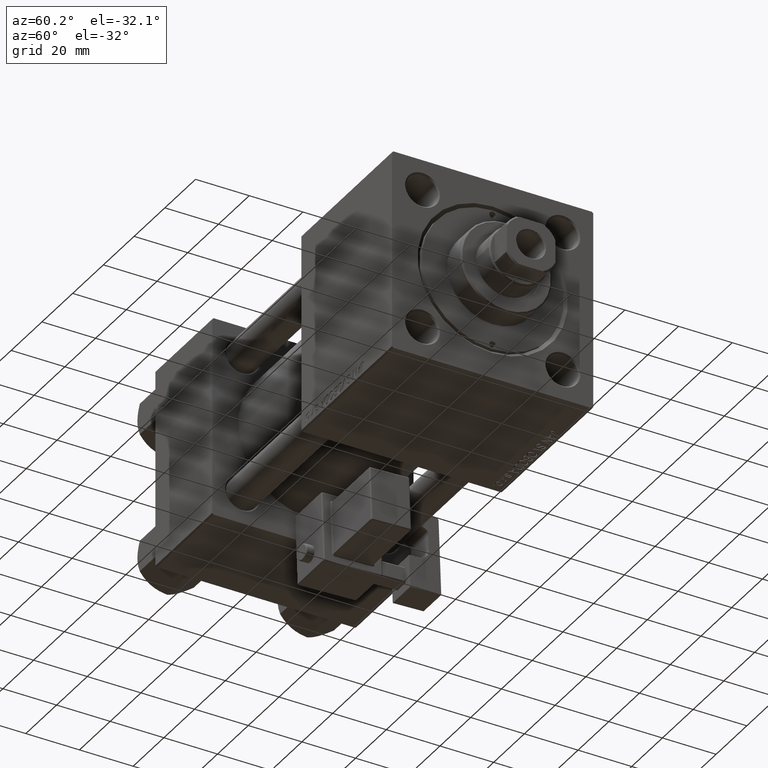
[diagram: clean part render]
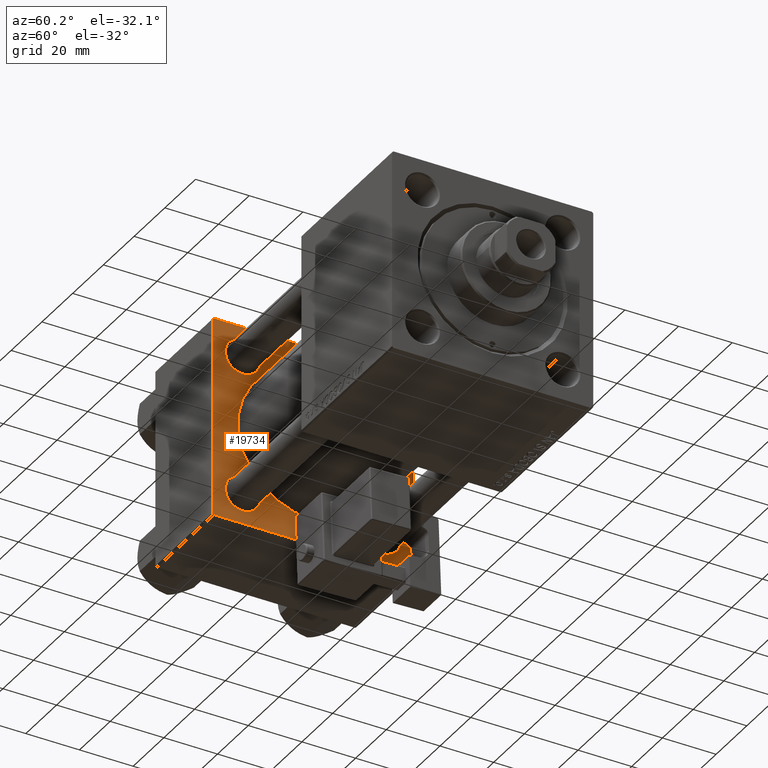
[diagram: same view with one face highlighted and labeled with its STEP entity id]
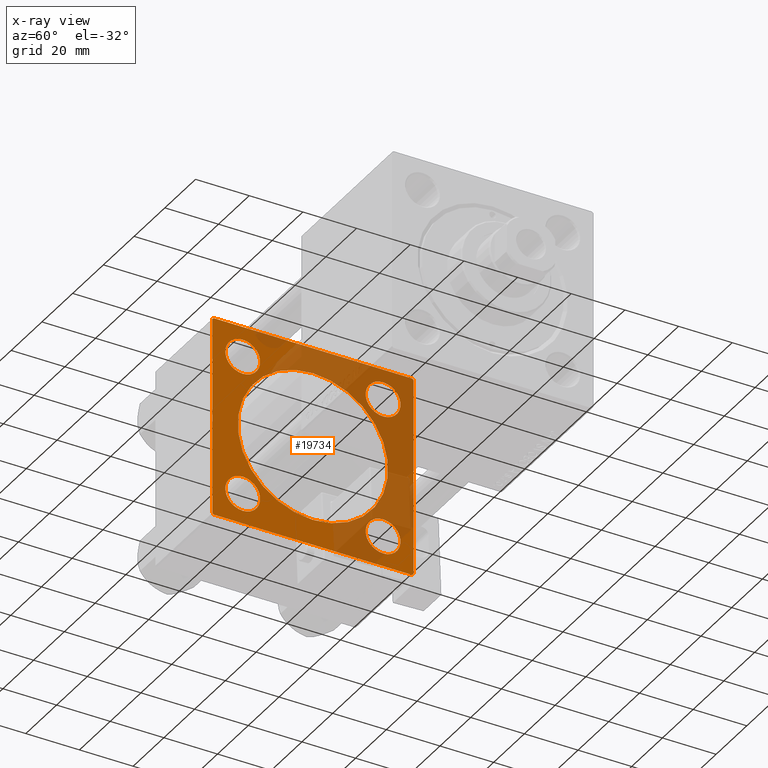
[diagram: x-ray of the same camera — body ghosted, the highlighted face saturated]
A machine part, auxiliary view. The second image highlights one B-rep face of the part: STEP entity #19734.
The next image is the same camera in x-ray: the body ghosted, the highlighted face saturated — about 48% of this face is hidden behind the body in this view.
In plain terms, the highlighted planar face has unit normal (-1, 0, 0).
Its self-contained STEP definition (entity closure, byte-faithful):
#180 = ORIENTED_EDGE ( 'NONE', *, *, #30512, .T. ) ;
#266 = CARTESIAN_POINT ( 'NONE',  ( 37.00000000000000000, 36.99999999999997868, -37.50000000000000000 ) ) ;
#515 = CARTESIAN_POINT ( 'NONE',  ( 37.00000000000000000, -26.14999999999999147, 32.65000000000001990 ) ) ;
#838 = LINE ( 'NONE', #41777, #36982 ) ;
#1379 = VERTEX_POINT ( 'NONE', #29436 ) ;
#2165 = VECTOR ( 'NONE', #45801, 1000.000000000000000 ) ;
#2439 = DIRECTION ( 'NONE',  ( -1.000000000000000000, 0.000000000000000000, -0.000000000000000000 ) ) ;
#2680 = VERTEX_POINT ( 'NONE', #43972 ) ;
#3248 = CARTESIAN_POINT ( 'NONE',  ( 37.00000000000000000, -26.14999999999999147, -19.65000000000000924 ) ) ;
#4253 = CARTESIAN_POINT ( 'NONE',  ( 37.00000000000000000, -2.602085213965210642E-15, 0.000000000000000000 ) ) ;
#5064 = EDGE_CURVE ( 'NONE', #6450, #24237, #6155, .T. ) ;
#5147 = VERTEX_POINT ( 'NONE', #20826 ) ;
#5470 = EDGE_CURVE ( 'NONE', #51007, #41295, #12247, .T. ) ;
#5558 = ORIENTED_EDGE ( 'NONE', *, *, #29639, .T. ) ;
#6155 = CIRCLE ( 'NONE', #13781, 6.500000000000030198 ) ;
#6450 = VERTEX_POINT ( 'NONE', #46031 ) ;
#6490 = EDGE_CURVE ( 'NONE', #31333, #5147, #18911, .T. ) ;
#7005 = DIRECTION ( 'NONE',  ( 0.000000000000000000, 0.000000000000000000, 1.000000000000000000 ) ) ;
#7140 = CARTESIAN_POINT ( 'NONE',  ( 37.00000000000000000, 26.14999999999999858, 19.64999999999997016 ) ) ;
#7176 = DIRECTION ( 'NONE',  ( 1.000000000000000000, -0.000000000000000000, 0.000000000000000000 ) ) ;
#7617 = FACE_OUTER_BOUND ( 'NONE', #12318, .T. ) ;
#7843 = VECTOR ( 'NONE', #8771, 1000.000000000000000 ) ;
#8028 = VERTEX_POINT ( 'NONE', #25993 ) ;
#8622 = CARTESIAN_POINT ( 'NONE',  ( 37.00000000000000000, -37.00000000000002132, -37.50000000000000711 ) ) ;
#8771 = DIRECTION ( 'NONE',  ( 0.000000000000000000, 0.000000000000000000, -1.000000000000000000 ) ) ;
#9038 = DIRECTION ( 'NONE',  ( -1.000000000000000000, 0.000000000000000000, -0.000000000000000000 ) ) ;
#9269 = EDGE_LOOP ( 'NONE', ( #38398, #46520 ) ) ;
#10753 = DIRECTION ( 'NONE',  ( 0.000000000000000000, 0.000000000000000000, 1.000000000000000000 ) ) ;
#11742 = ORIENTED_EDGE ( 'NONE', *, *, #16235, .F. ) ;
#12247 = LINE ( 'NONE', #28459, #7843 ) ;
#12318 = EDGE_LOOP ( 'NONE', ( #11742, #31190, #39809, #21229, #33903, #48790, #21250, #30911 ) ) ;
#13159 = DIRECTION ( 'NONE',  ( -1.000000000000000000, 0.000000000000000000, -0.000000000000000000 ) ) ;
#13210 = CARTESIAN_POINT ( 'NONE',  ( 37.00000000000000000, 37.49999999999999289, 37.50000000000000000 ) ) ;
#13676 = CARTESIAN_POINT ( 'NONE',  ( 37.00000000000000000, -26.14999999999999147, 26.15000000000000924 ) ) ;
#13781 = AXIS2_PLACEMENT_3D ( 'NONE', #39710, #35453, #7005 ) ;
#14136 = DIRECTION ( 'NONE',  ( 0.000000000000000000, 0.000000000000000000, 1.000000000000000000 ) ) ;
#14214 = CARTESIAN_POINT ( 'NONE',  ( 37.00000000000000000, 26.14999999999999858, 26.15000000000000213 ) ) ;
#14240 = VERTEX_POINT ( 'NONE', #20589 ) ;
#14386 = EDGE_CURVE ( 'NONE', #1379, #8028, #32660, .T. ) ;
#15212 = CIRCLE ( 'NONE', #31349, 6.500000000000030198 ) ;
#15308 = CARTESIAN_POINT ( 'NONE',  ( 37.00000000000000000, -37.00000000000000711, 37.49999999999999289 ) ) ;
#15371 = AXIS2_PLACEMENT_3D ( 'NONE', #13676, #13159, #37364 ) ;
#15403 = CIRCLE ( 'NONE', #30668, 6.500000000000002665 ) ;
#15692 = DIRECTION ( 'NONE',  ( 0.000000000000000000, 0.000000000000000000, 1.000000000000000000 ) ) ;
#15749 = CARTESIAN_POINT ( 'NONE',  ( 37.00000000000000000, 37.49999999999999289, -36.99999999999998579 ) ) ;
#15756 = EDGE_CURVE ( 'NONE', #2680, #31950, #21113, .T. ) ;
#16019 = VERTEX_POINT ( 'NONE', #3248 ) ;
#16218 = ORIENTED_EDGE ( 'NONE', *, *, #43852, .T. ) ;
#16235 = EDGE_CURVE ( 'NONE', #16542, #31950, #838, .T. ) ;
#16287 = EDGE_CURVE ( 'NONE', #41286, #2680, #37019, .T. ) ;
#16470 = CARTESIAN_POINT ( 'NONE',  ( 37.00000000000000000, -37.50000000000000711, 36.99999999999999289 ) ) ;
#16539 = EDGE_CURVE ( 'NONE', #23717, #41286, #36435, .T. ) ;
#16542 = VERTEX_POINT ( 'NONE', #266 ) ;
#16789 = DIRECTION ( 'NONE',  ( 0.000000000000000000, -1.000000000000000000, -9.251858538542972814E-17 ) ) ;
#18169 = ORIENTED_EDGE ( 'NONE', *, *, #6490, .T. ) ;
#18742 = DIRECTION ( 'NONE',  ( -1.000000000000000000, 0.000000000000000000, -0.000000000000000000 ) ) ;
#18911 = CIRCLE ( 'NONE', #45231, 6.500000000000008882 ) ;
#19734 = ADVANCED_FACE ( 'NONE', ( #32619, #23318, #39540, #48011, #27819, #7617 ), #23843, .F. ) ;
#20589 = CARTESIAN_POINT ( 'NONE',  ( 37.00000000000000000, -26.14999999999999147, -32.65000000000001279 ) ) ;
#20826 = CARTESIAN_POINT ( 'NONE',  ( 37.00000000000000000, -26.14999999999999147, 19.65000000000000213 ) ) ;
#21051 = AXIS2_PLACEMENT_3D ( 'NONE', #26928, #43139, #52168 ) ;
#21113 = LINE ( 'NONE', #8622, #2165 ) ;
#21229 = ORIENTED_EDGE ( 'NONE', *, *, #50708, .T. ) ;
#21250 = ORIENTED_EDGE ( 'NONE', *, *, #16287, .T. ) ;
#21307 = DIRECTION ( 'NONE',  ( 0.000000000000000000, 9.251858538542971581E-17, -1.000000000000000000 ) ) ;
#21543 = CARTESIAN_POINT ( 'NONE',  ( 37.00000000000000000, -26.14999999999999147, -26.15000000000000924 ) ) ;
#22097 = AXIS2_PLACEMENT_3D ( 'NONE', #32183, #31375, #15692 ) ;
#23073 = CARTESIAN_POINT ( 'NONE',  ( 37.00000000000000000, 36.99999999999999289, 37.50000000000000000 ) ) ;
#23297 = EDGE_CURVE ( 'NONE', #49470, #23717, #29164, .T. ) ;
#23311 = AXIS2_PLACEMENT_3D ( 'NONE', #29840, #37830, #26111 ) ;
#23318 = FACE_BOUND ( 'NONE', #9269, .T. ) ;
#23408 = DIRECTION ( 'NONE',  ( 0.000000000000000000, 0.000000000000000000, 1.000000000000000000 ) ) ;
#23562 = ORIENTED_EDGE ( 'NONE', *, *, #14386, .F. ) ;
#23717 = VERTEX_POINT ( 'NONE', #15308 ) ;
#23843 = PLANE ( 'NONE',  #24290 ) ;
#24237 = VERTEX_POINT ( 'NONE', #42855 ) ;
#24290 = AXIS2_PLACEMENT_3D ( 'NONE', #52277, #33392, #29646 ) ;
#24412 = DIRECTION ( 'NONE',  ( 0.000000000000000000, -1.000000000000000000, -9.251858538542971581E-17 ) ) ;
#25266 = CARTESIAN_POINT ( 'NONE',  ( 37.00000000000000000, 37.49999999999999289, -36.99999999999998579 ) ) ;
#25993 = CARTESIAN_POINT ( 'NONE',  ( 37.00000000000000000, 8.269258236473776482E-16, -28.00000000000000000 ) ) ;
#26104 = EDGE_LOOP ( 'NONE', ( #16218, #42068 ) ) ;
#26111 = DIRECTION ( 'NONE',  ( 0.000000000000000000, 0.000000000000000000, 1.000000000000000000 ) ) ;
#26366 = VERTEX_POINT ( 'NONE', #7140 ) ;
#26425 = CIRCLE ( 'NONE', #15371, 6.500000000000008882 ) ;
#26928 = CARTESIAN_POINT ( 'NONE',  ( 37.00000000000000000, -26.14999999999999147, -26.15000000000000924 ) ) ;
#27179 = VECTOR ( 'NONE', #40490, 1000.000000000000114 ) ;
#27819 = FACE_BOUND ( 'NONE', #50431, .T. ) ;
#28459 = CARTESIAN_POINT ( 'NONE',  ( 37.00000000000000000, 37.49999999999999289, 37.50000000000000000 ) ) ;
#28501 = CARTESIAN_POINT ( 'NONE',  ( 37.00000000000000000, -37.50000000000000711, 37.49999999999999289 ) ) ;
#29164 = LINE ( 'NONE', #13210, #48887 ) ;
#29436 = CARTESIAN_POINT ( 'NONE',  ( 37.00000000000000000, -2.602085213965210642E-15, 28.00000000000000000 ) ) ;
#29639 = EDGE_CURVE ( 'NONE', #26366, #31560, #30444, .T. ) ;
#29646 = DIRECTION ( 'NONE',  ( -0.000000000000000000, 0.000000000000000000, 1.000000000000000000 ) ) ;
#29840 = CARTESIAN_POINT ( 'NONE',  ( 37.00000000000000000, -2.602085213965210642E-15, 0.000000000000000000 ) ) ;
#30444 = CIRCLE ( 'NONE', #35565, 6.500000000000030198 ) ;
#30512 = EDGE_CURVE ( 'NONE', #31560, #26366, #15212, .T. ) ;
#30573 = EDGE_LOOP ( 'NONE', ( #5558, #180 ) ) ;
#30605 = AXIS2_PLACEMENT_3D ( 'NONE', #4253, #7176, #23408 ) ;
#30668 = AXIS2_PLACEMENT_3D ( 'NONE', #21543, #9038, #49443 ) ;
#30727 = CARTESIAN_POINT ( 'NONE',  ( 37.00000000000000000, -37.00000000000002132, -37.50000000000000711 ) ) ;
#30911 = ORIENTED_EDGE ( 'NONE', *, *, #15756, .T. ) ;
#31190 = ORIENTED_EDGE ( 'NONE', *, *, #49707, .T. ) ;
#31333 = VERTEX_POINT ( 'NONE', #515 ) ;
#31349 = AXIS2_PLACEMENT_3D ( 'NONE', #33983, #33725, #37973 ) ;
#31375 = DIRECTION ( 'NONE',  ( -1.000000000000000000, 0.000000000000000000, -0.000000000000000000 ) ) ;
#31560 = VERTEX_POINT ( 'NONE', #35045 ) ;
#31950 = VERTEX_POINT ( 'NONE', #30727 ) ;
#32183 = CARTESIAN_POINT ( 'NONE',  ( 37.00000000000000000, 26.14999999999999858, -26.15000000000000213 ) ) ;
#32327 = EDGE_CURVE ( 'NONE', #24237, #6450, #50920, .T. ) ;
#32619 = FACE_BOUND ( 'NONE', #26104, .T. ) ;
#32660 = CIRCLE ( 'NONE', #23311, 28.00000000000000000 ) ;
#33091 = LINE ( 'NONE', #37345, #47581 ) ;
#33392 = DIRECTION ( 'NONE',  ( -1.000000000000000000, 0.000000000000000000, -0.000000000000000000 ) ) ;
#33725 = DIRECTION ( 'NONE',  ( -1.000000000000000000, 0.000000000000000000, -0.000000000000000000 ) ) ;
#33903 = ORIENTED_EDGE ( 'NONE', *, *, #23297, .T. ) ;
#33983 = CARTESIAN_POINT ( 'NONE',  ( 37.00000000000000000, 26.14999999999999858, 26.15000000000000213 ) ) ;
#34024 = CIRCLE ( 'NONE', #30605, 28.00000000000000000 ) ;
#34035 = CARTESIAN_POINT ( 'NONE',  ( 37.00000000000000000, -37.50000000000000711, 36.99999999999999289 ) ) ;
#35045 = CARTESIAN_POINT ( 'NONE',  ( 37.00000000000000000, 26.14999999999999858, 32.65000000000004121 ) ) ;
#35453 = DIRECTION ( 'NONE',  ( -1.000000000000000000, 0.000000000000000000, -0.000000000000000000 ) ) ;
#35501 = CIRCLE ( 'NONE', #21051, 6.500000000000002665 ) ;
#35565 = AXIS2_PLACEMENT_3D ( 'NONE', #14214, #18742, #10753 ) ;
#35892 = VECTOR ( 'NONE', #40938, 1000.000000000000114 ) ;
#36435 = LINE ( 'NONE', #16470, #35892 ) ;
#36982 = VECTOR ( 'NONE', #16789, 1000.000000000000000 ) ;
#37019 = LINE ( 'NONE', #28501, #40361 ) ;
#37345 = CARTESIAN_POINT ( 'NONE',  ( 37.00000000000000000, 36.99999999999999289, 37.50000000000000000 ) ) ;
#37364 = DIRECTION ( 'NONE',  ( 0.000000000000000000, 0.000000000000000000, 1.000000000000000000 ) ) ;
#37474 = CARTESIAN_POINT ( 'NONE',  ( 37.00000000000000000, 37.49999999999999289, 37.00000000000000000 ) ) ;
#37830 = DIRECTION ( 'NONE',  ( 1.000000000000000000, -0.000000000000000000, 0.000000000000000000 ) ) ;
#37868 = ORIENTED_EDGE ( 'NONE', *, *, #51623, .T. ) ;
#37973 = DIRECTION ( 'NONE',  ( 0.000000000000000000, 0.000000000000000000, 1.000000000000000000 ) ) ;
#38398 = ORIENTED_EDGE ( 'NONE', *, *, #5064, .T. ) ;
#38440 = EDGE_CURVE ( 'NONE', #16019, #14240, #15403, .T. ) ;
#38872 = CARTESIAN_POINT ( 'NONE',  ( 37.00000000000000000, -26.14999999999999147, 26.15000000000000924 ) ) ;
#39540 = FACE_BOUND ( 'NONE', #46976, .T. ) ;
#39710 = CARTESIAN_POINT ( 'NONE',  ( 37.00000000000000000, 26.14999999999999858, -26.15000000000000213 ) ) ;
#39809 = ORIENTED_EDGE ( 'NONE', *, *, #5470, .F. ) ;
#40361 = VECTOR ( 'NONE', #21307, 1000.000000000000000 ) ;
#40490 = DIRECTION ( 'NONE',  ( -0.000000000000000000, 0.7071067811865474617, 0.7071067811865474617 ) ) ;
#40815 = DIRECTION ( 'NONE',  ( 0.000000000000000000, -0.7071067811865474617, 0.7071067811865474617 ) ) ;
#40938 = DIRECTION ( 'NONE',  ( -0.000000000000000000, -0.7071067811865474617, -0.7071067811865474617 ) ) ;
#41286 = VERTEX_POINT ( 'NONE', #34035 ) ;
#41295 = VERTEX_POINT ( 'NONE', #25266 ) ;
#41777 = CARTESIAN_POINT ( 'NONE',  ( 37.00000000000000000, 37.49999999999999289, -37.50000000000000000 ) ) ;
#42068 = ORIENTED_EDGE ( 'NONE', *, *, #38440, .T. ) ;
#42855 = CARTESIAN_POINT ( 'NONE',  ( 37.00000000000000000, 26.14999999999999858, -19.64999999999997371 ) ) ;
#43139 = DIRECTION ( 'NONE',  ( -1.000000000000000000, 0.000000000000000000, -0.000000000000000000 ) ) ;
#43852 = EDGE_CURVE ( 'NONE', #14240, #16019, #35501, .T. ) ;
#43972 = CARTESIAN_POINT ( 'NONE',  ( 37.00000000000000000, -37.50000000000000000, -37.00000000000003553 ) ) ;
#44463 = LINE ( 'NONE', #15749, #27179 ) ;
#44918 = ORIENTED_EDGE ( 'NONE', *, *, #50107, .F. ) ;
#45231 = AXIS2_PLACEMENT_3D ( 'NONE', #38872, #2439, #14136 ) ;
#45801 = DIRECTION ( 'NONE',  ( 0.000000000000000000, 0.7071067811865524577, -0.7071067811865426878 ) ) ;
#46031 = CARTESIAN_POINT ( 'NONE',  ( 37.00000000000000000, 26.14999999999999858, -32.65000000000003411 ) ) ;
#46520 = ORIENTED_EDGE ( 'NONE', *, *, #32327, .T. ) ;
#46976 = EDGE_LOOP ( 'NONE', ( #37868, #18169 ) ) ;
#47581 = VECTOR ( 'NONE', #40815, 1000.000000000000114 ) ;
#48011 = FACE_BOUND ( 'NONE', #30573, .T. ) ;
#48790 = ORIENTED_EDGE ( 'NONE', *, *, #16539, .T. ) ;
#48887 = VECTOR ( 'NONE', #24412, 1000.000000000000000 ) ;
#49443 = DIRECTION ( 'NONE',  ( 0.000000000000000000, 0.000000000000000000, 1.000000000000000000 ) ) ;
#49470 = VERTEX_POINT ( 'NONE', #23073 ) ;
#49707 = EDGE_CURVE ( 'NONE', #16542, #41295, #44463, .T. ) ;
#50107 = EDGE_CURVE ( 'NONE', #8028, #1379, #34024, .T. ) ;
#50431 = EDGE_LOOP ( 'NONE', ( #23562, #44918 ) ) ;
#50708 = EDGE_CURVE ( 'NONE', #51007, #49470, #33091, .T. ) ;
#50920 = CIRCLE ( 'NONE', #22097, 6.500000000000030198 ) ;
#51007 = VERTEX_POINT ( 'NONE', #37474 ) ;
#51623 = EDGE_CURVE ( 'NONE', #5147, #31333, #26425, .T. ) ;
#52168 = DIRECTION ( 'NONE',  ( 0.000000000000000000, 0.000000000000000000, 1.000000000000000000 ) ) ;
#52277 = CARTESIAN_POINT ( 'NONE',  ( 37.00000000000000000, 0.000000000000000000, 0.000000000000000000 ) ) ;